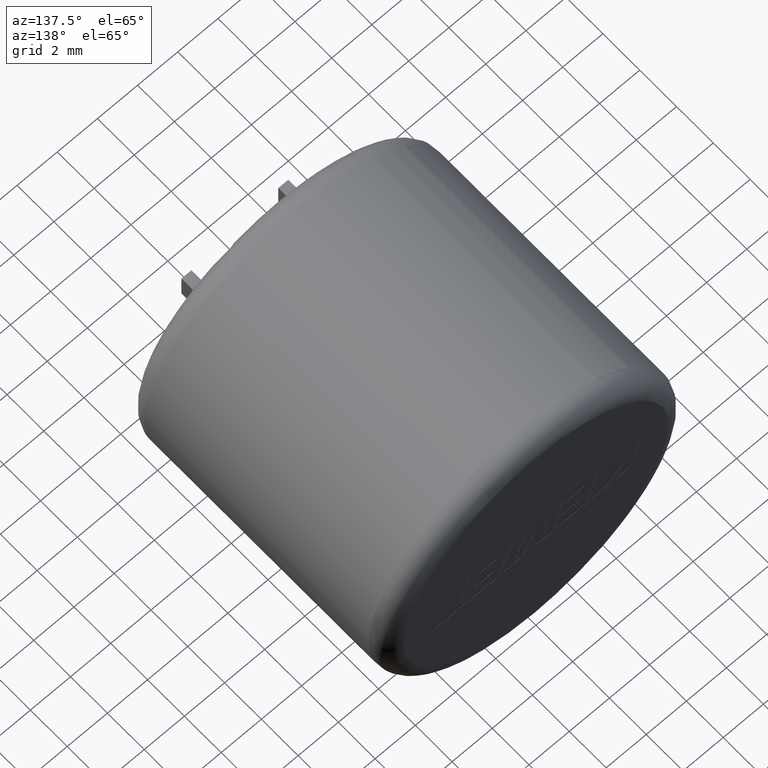
[diagram: clean part render]
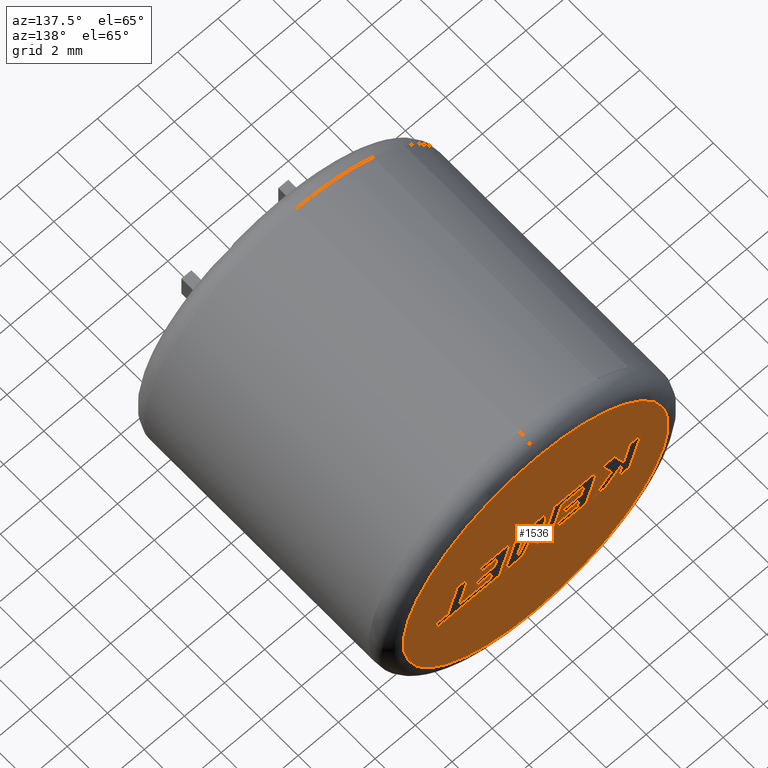
[diagram: same view with one face highlighted and labeled with its STEP entity id]
A machine part, auxiliary view. The second image highlights one B-rep face of the part: STEP entity #1536.
In plain terms, the highlighted planar face has unit normal (0, 1, 0).
Its self-contained STEP definition (entity closure, byte-faithful):
#1 = CARTESIAN_POINT ( 'NONE',  ( 8.631922963790118000E-016, 14.00000000000000000, -6.596999999999999500 ) ) ;
#2 = LINE ( 'NONE', #411, #166 ) ;
#19 = CARTESIAN_POINT ( 'NONE',  ( 0.0000000000000000000, 14.00000000000000000, 0.0000000000000000000 ) ) ;
#26 = VECTOR ( 'NONE', #730, 1000.000000000000000 ) ;
#32 = LINE ( 'NONE', #1205, #2128 ) ;
#38 = LINE ( 'NONE', #2052, #1680 ) ;
#42 = CARTESIAN_POINT ( 'NONE',  ( 1.227090569557494300, 14.00000000000000000, 1.053028994543904900 ) ) ;
#43 = ORIENTED_EDGE ( 'NONE', *, *, #2707, .F. ) ;
#46 = DIRECTION ( 'NONE',  ( -1.000000000000000000, 0.0000000000000000000, 0.0000000000000000000 ) ) ;
#48 = EDGE_CURVE ( 'NONE', #1584, #2739, #210, .T. ) ;
#51 = DIRECTION ( 'NONE',  ( 1.000000000000000000, 0.0000000000000000000, 0.0000000000000000000 ) ) ;
#58 = CARTESIAN_POINT ( 'NONE',  ( -2.044280021955986900, 14.00000000000000000, -0.5793581909814401500 ) ) ;
#59 = VERTEX_POINT ( 'NONE', #98 ) ;
#80 = EDGE_CURVE ( 'NONE', #1637, #434, #2399, .T. ) ;
#86 = DIRECTION ( 'NONE',  ( 0.2740217765954067200, 0.0000000000000000000, -0.9617234872620595800 ) ) ;
#96 = VECTOR ( 'NONE', #831, 1000.000000000000200 ) ;
#98 = CARTESIAN_POINT ( 'NONE',  ( -0.4995563842746180700, 14.00000000000000000, 1.053028994543905300 ) ) ;
#114 = EDGE_CURVE ( 'NONE', #2323, #699, #905, .T. ) ;
#117 = VECTOR ( 'NONE', #1869, 1000.000000000000100 ) ;
#134 = CARTESIAN_POINT ( 'NONE',  ( 0.6798407158200340300, 14.00000000000000000, -0.9631222229663527500 ) ) ;
#143 = PLANE ( 'NONE',  #1970 ) ;
#153 = LINE ( 'NONE', #1111, #2292 ) ;
#156 = DIRECTION ( 'NONE',  ( -1.000000000000000000, -0.0000000000000000000, -0.0000000000000000000 ) ) ;
#161 = LINE ( 'NONE', #1281, #1811 ) ;
#166 = VECTOR ( 'NONE', #1907, 1000.000000000000000 ) ;
#167 = CARTESIAN_POINT ( 'NONE',  ( 0.6798407158200339100, 14.00000000000000000, -0.9631222229663525300 ) ) ;
#180 = DIRECTION ( 'NONE',  ( 0.2745159998572669300, 0.0000000000000000000, -0.9615825319869143500 ) ) ;
#186 = DIRECTION ( 'NONE',  ( 0.2762033010288755300, 0.0000000000000000000, -0.9610992334305299400 ) ) ;
#190 = LINE ( 'NONE', #1619, #117 ) ;
#192 = EDGE_CURVE ( 'NONE', #307, #2170, #2, .T. ) ;
#200 = CARTESIAN_POINT ( 'NONE',  ( 4.931683720037595400, 14.00000000000000000, -0.5737970821254480000 ) ) ;
#207 = CARTESIAN_POINT ( 'NONE',  ( 0.0000000000000000000, 14.00000000000000000, 6.596999999999999500 ) ) ;
#210 = LINE ( 'NONE', #1159, #1971 ) ;
#212 = CARTESIAN_POINT ( 'NONE',  ( -2.506168825485704900, 14.00000000000000000, -0.9631222229663520800 ) ) ;
#213 = EDGE_CURVE ( 'NONE', #1815, #397, #904, .T. ) ;
#216 = CARTESIAN_POINT ( 'NONE',  ( -4.677904531710408900, 14.00000000000000000, 1.053028994543905300 ) ) ;
#222 = ORIENTED_EDGE ( 'NONE', *, *, #213, .F. ) ;
#231 = CARTESIAN_POINT ( 'NONE',  ( -4.097731242331414100, 14.00000000000000000, -0.9631222229663523000 ) ) ;
#247 = EDGE_CURVE ( 'NONE', #2655, #1239, #1350, .T. ) ;
#251 = VERTEX_POINT ( 'NONE', #1682 ) ;
#253 = CARTESIAN_POINT ( 'NONE',  ( -0.9143214339711456300, 14.00000000000000000, 1.053028994543905300 ) ) ;
#254 = VERTEX_POINT ( 'NONE', #1 ) ;
#256 = LINE ( 'NONE', #378, #897 ) ;
#257 = LINE ( 'NONE', #1333, #1344 ) ;
#269 = DIRECTION ( 'NONE',  ( 0.0000000000000000000, 0.0000000000000000000, 1.000000000000000000 ) ) ;
#275 = CARTESIAN_POINT ( 'NONE',  ( 0.0000000000000000000, 14.00000000000000000, 0.0000000000000000000 ) ) ;
#290 = LINE ( 'NONE', #1919, #520 ) ;
#298 = LINE ( 'NONE', #200, #2497 ) ;
#303 = ORIENTED_EDGE ( 'NONE', *, *, #2319, .F. ) ;
#307 = VERTEX_POINT ( 'NONE', #2202 ) ;
#311 = VERTEX_POINT ( 'NONE', #2414 ) ;
#322 = DIRECTION ( 'NONE',  ( 0.2763139702539117400, 0.0000000000000000000, -0.9610674221107072800 ) ) ;
#335 = ORIENTED_EDGE ( 'NONE', *, *, #2763, .F. ) ;
#361 = AXIS2_PLACEMENT_3D ( 'NONE', #275, #2413, #269 ) ;
#365 = VECTOR ( 'NONE', #823, 1000.000000000000100 ) ;
#370 = CARTESIAN_POINT ( 'NONE',  ( -1.125700924485933100, 14.00000000000000000, -0.5793581909814401500 ) ) ;
#374 = DIRECTION ( 'NONE',  ( 0.0000000000000000000, 1.000000000000000000, 0.0000000000000000000 ) ) ;
#378 = CARTESIAN_POINT ( 'NONE',  ( -3.765038890539953000, 14.00000000000000000, -0.04168639734653927600 ) ) ;
#380 = CARTESIAN_POINT ( 'NONE',  ( 3.912071732558238600, 14.00000000000000000, 1.053028994543904000 ) ) ;
#381 = DIRECTION ( 'NONE',  ( -0.2764273280489769100, 0.0000000000000000000, 0.9610348236706635100 ) ) ;
#383 = CARTESIAN_POINT ( 'NONE',  ( 0.0000000000000000000, 14.00000000000000000, 0.0000000000000000000 ) ) ;
#384 = ORIENTED_EDGE ( 'NONE', *, *, #1893, .F. ) ;
#393 = CARTESIAN_POINT ( 'NONE',  ( 1.807006385584198200, 14.00000000000000000, -0.9631222229663527500 ) ) ;
#394 = DIRECTION ( 'NONE',  ( -1.000000000000000000, 0.0000000000000000000, 5.050979426444720200E-016 ) ) ;
#397 = VERTEX_POINT ( 'NONE', #2472 ) ;
#399 = DIRECTION ( 'NONE',  ( 0.2759782365590740500, 0.0000000000000000000, -0.9611638845408954100 ) ) ;
#408 = EDGE_CURVE ( 'NONE', #540, #1110, #32, .T. ) ;
#409 = DIRECTION ( 'NONE',  ( 0.7145695586382339000, -0.0000000000000000000, -0.6995643972269883800 ) ) ;
#411 = CARTESIAN_POINT ( 'NONE',  ( -1.288044003593056700, 14.00000000000000000, -0.2043543833022431500 ) ) ;
#414 = CARTESIAN_POINT ( 'NONE',  ( 0.03793149982259607500, 14.00000000000000000, 1.053028994543905100 ) ) ;
#416 = CARTESIAN_POINT ( 'NONE',  ( -2.823838918333584600, 14.00000000000000000, -0.9631222229663523000 ) ) ;
#424 = ORIENTED_EDGE ( 'NONE', *, *, #2182, .F. ) ;
#425 = FACE_OUTER_BOUND ( 'NONE', #1480, .T. ) ;
#427 = DIRECTION ( 'NONE',  ( 0.2755265765475025100, -0.0000000000000000000, -0.9612934544747577800 ) ) ;
#431 = CARTESIAN_POINT ( 'NONE',  ( -1.125700924485933100, 14.00000000000000000, -0.5793581909814401500 ) ) ;
#434 = VERTEX_POINT ( 'NONE', #978 ) ;
#450 = CARTESIAN_POINT ( 'NONE',  ( 0.03793149982259607500, 14.00000000000000000, 1.053028994543905100 ) ) ;
#453 = DIRECTION ( 'NONE',  ( 0.0000000000000000000, -0.0000000000000000000, 1.000000000000000000 ) ) ;
#459 = CARTESIAN_POINT ( 'NONE',  ( -1.016703871901081000, 14.00000000000000000, -0.9631222229663523000 ) ) ;
#462 = VECTOR ( 'NONE', #427, 1000.000000000000100 ) ;
#480 = ORIENTED_EDGE ( 'NONE', *, *, #979, .F. ) ;
#482 = CARTESIAN_POINT ( 'NONE',  ( -3.487335487235283500, 14.00000000000000000, -0.9631222229663523000 ) ) ;
#489 = LINE ( 'NONE', #1771, #860 ) ;
#501 = CARTESIAN_POINT ( 'NONE',  ( -1.273190244891335900, 14.00000000000000000, 1.053028994543905300 ) ) ;
#508 = EDGE_CURVE ( 'NONE', #1011, #2706, #2634, .T. ) ;
#517 = FACE_BOUND ( 'NONE', #692, .T. ) ;
#519 = LINE ( 'NONE', #1791, #2722 ) ;
#520 = VECTOR ( 'NONE', #2561, 1000.000000000000100 ) ;
#522 = ORIENTED_EDGE ( 'NONE', *, *, #508, .F. ) ;
#525 = ORIENTED_EDGE ( 'NONE', *, *, #919, .F. ) ;
#540 = VERTEX_POINT ( 'NONE', #2537 ) ;
#564 = LINE ( 'NONE', #414, #1236 ) ;
#570 = DIRECTION ( 'NONE',  ( -0.2765379750249959400, 0.0000000000000000000, 0.9610029908221278100 ) ) ;
#581 = DIRECTION ( 'NONE',  ( -0.4443210308329209000, 0.0000000000000000000, 0.8958676361826954900 ) ) ;
#585 = EDGE_CURVE ( 'NONE', #1046, #2391, #564, .T. ) ;
#586 = CARTESIAN_POINT ( 'NONE',  ( 4.379680122707077800, 14.00000000000000000, -0.5738409048472185000 ) ) ;
#603 = VERTEX_POINT ( 'NONE', #207 ) ;
#606 = EDGE_CURVE ( 'NONE', #1177, #946, #2766, .T. ) ;
#618 = DIRECTION ( 'NONE',  ( -0.7059037656364859400, -0.0000000000000000000, 0.7083077534943613700 ) ) ;
#621 = CARTESIAN_POINT ( 'NONE',  ( -3.086335984546776600, 14.00000000000000000, 1.053028994543905700 ) ) ;
#624 = ORIENTED_EDGE ( 'NONE', *, *, #1138, .F. ) ;
#628 = LINE ( 'NONE', #2761, #2721 ) ;
#634 = ORIENTED_EDGE ( 'NONE', *, *, #2470, .F. ) ;
#635 = ORIENTED_EDGE ( 'NONE', *, *, #2509, .F. ) ;
#637 = CARTESIAN_POINT ( 'NONE',  ( -3.765038890539953000, 14.00000000000000000, -0.04168639734653927600 ) ) ;
#673 = VERTEX_POINT ( 'NONE', #1806 ) ;
#684 = DIRECTION ( 'NONE',  ( 1.000000000000000000, 0.0000000000000000000, -4.232393926185561900E-016 ) ) ;
#692 = EDGE_LOOP ( 'NONE', ( #2243, #424, #1092, #2590, #2230, #1949, #2376, #1606, #1629, #2622, #1854, #480, #2071, #2477, #1363, #866, #2646, #384, #1449, #1251, #808, #2232, #1447 ) ) ;
#696 = LINE ( 'NONE', #2270, #1677 ) ;
#699 = VERTEX_POINT ( 'NONE', #2656 ) ;
#704 = DIRECTION ( 'NONE',  ( 1.000000000000000000, 0.0000000000000000000, -3.775570415932256000E-016 ) ) ;
#715 = VECTOR ( 'NONE', #1762, 1000.000000000000000 ) ;
#719 = VECTOR ( 'NONE', #46, 1000.000000000000000 ) ;
#730 = DIRECTION ( 'NONE',  ( 1.000000000000000000, 0.0000000000000000000, 0.0000000000000000000 ) ) ;
#744 = CARTESIAN_POINT ( 'NONE',  ( 0.9844525863630282400, 14.00000000000000000, 1.053028994543904600 ) ) ;
#757 = LINE ( 'NONE', #2074, #2629 ) ;
#761 = DIRECTION ( 'NONE',  ( 1.000000000000000000, -0.0000000000000000000, 1.096870650732911000E-013 ) ) ;
#780 = DIRECTION ( 'NONE',  ( 0.2746918797667231600, 0.0000000000000000000, -0.9615323037684299100 ) ) ;
#786 = VECTOR ( 'NONE', #1182, 1000.000000000000000 ) ;
#798 = ORIENTED_EDGE ( 'NONE', *, *, #2150, .F. ) ;
#800 = EDGE_CURVE ( 'NONE', #2660, #1930, #38, .T. ) ;
#801 = LINE ( 'NONE', #1694, #1873 ) ;
#808 = ORIENTED_EDGE ( 'NONE', *, *, #1335, .F. ) ;
#823 = DIRECTION ( 'NONE',  ( -0.05596501978067570900, 0.0000000000000000000, 0.9984327301130249100 ) ) ;
#830 = LINE ( 'NONE', #2082, #1604 ) ;
#831 = DIRECTION ( 'NONE',  ( -0.2763173343569915700, 0.0000000000000000000, 0.9610664548998921800 ) ) ;
#856 = LINE ( 'NONE', #2436, #786 ) ;
#859 = LINE ( 'NONE', #2401, #2662 ) ;
#860 = VECTOR ( 'NONE', #684, 1000.000000000000000 ) ;
#866 = ORIENTED_EDGE ( 'NONE', *, *, #1993, .F. ) ;
#867 = CARTESIAN_POINT ( 'NONE',  ( -4.671798733445354100, 14.00000000000000000, -0.9631222229663523000 ) ) ;
#872 = VECTOR ( 'NONE', #381, 1000.000000000000000 ) ;
#889 = EDGE_CURVE ( 'NONE', #1704, #1218, #830, .T. ) ;
#897 = VECTOR ( 'NONE', #1734, 1000.000000000000100 ) ;
#904 = LINE ( 'NONE', #1054, #96 ) ;
#905 = LINE ( 'NONE', #1247, #2001 ) ;
#907 = CARTESIAN_POINT ( 'NONE',  ( 3.805490025235814100, 14.00000000000000000, -0.5738409048522489200 ) ) ;
#908 = EDGE_CURVE ( 'NONE', #1731, #673, #2389, .T. ) ;
#918 = VECTOR ( 'NONE', #322, 1000.000000000000000 ) ;
#919 = EDGE_CURVE ( 'NONE', #1299, #2045, #1772, .T. ) ;
#920 = DIRECTION ( 'NONE',  ( -0.2762033010252001900, -0.0000000000000000000, 0.9610992334315862100 ) ) ;
#927 = CARTESIAN_POINT ( 'NONE',  ( 3.912071732558238600, 14.00000000000000000, 1.053028994543904000 ) ) ;
#946 = VERTEX_POINT ( 'NONE', #1678 ) ;
#954 = CIRCLE ( 'NONE', #1751, 6.596999999999999500 ) ;
#955 = EDGE_CURVE ( 'NONE', #1278, #1637, #757, .T. ) ;
#963 = ORIENTED_EDGE ( 'NONE', *, *, #1388, .T. ) ;
#976 = ORIENTED_EDGE ( 'NONE', *, *, #1422, .F. ) ;
#978 = CARTESIAN_POINT ( 'NONE',  ( -0.03453285888950724500, 14.00000000000000000, 0.4772421111879622800 ) ) ;
#979 = EDGE_CURVE ( 'NONE', #2631, #2565, #1163, .T. ) ;
#989 = ORIENTED_EDGE ( 'NONE', *, *, #1036, .F. ) ;
#990 = FACE_BOUND ( 'NONE', #2058, .T. ) ;
#992 = VECTOR ( 'NONE', #399, 1000.000000000000200 ) ;
#1003 = LINE ( 'NONE', #1265, #365 ) ;
#1011 = VERTEX_POINT ( 'NONE', #1667 ) ;
#1031 = EDGE_CURVE ( 'NONE', #1110, #1986, #2488, .T. ) ;
#1035 = VERTEX_POINT ( 'NONE', #231 ) ;
#1036 = EDGE_CURVE ( 'NONE', #2045, #2554, #256, .T. ) ;
#1045 = DIRECTION ( 'NONE',  ( 1.000000000000000000, -0.0000000000000000000, -0.0000000000000000000 ) ) ;
#1046 = VERTEX_POINT ( 'NONE', #450 ) ;
#1050 = VERTEX_POINT ( 'NONE', #867 ) ;
#1054 = CARTESIAN_POINT ( 'NONE',  ( 3.805490025235814100, 14.00000000000000000, -0.5738409048522489200 ) ) ;
#1055 = DIRECTION ( 'NONE',  ( 0.9999960426590096500, 0.0000000000000000000, 0.002813301676022722900 ) ) ;
#1057 = VERTEX_POINT ( 'NONE', #2112 ) ;
#1062 = VECTOR ( 'NONE', #780, 1000.000000000000000 ) ;
#1067 = CARTESIAN_POINT ( 'NONE',  ( 0.9900434363040663300, 14.00000000000000000, -0.7505411885221796600 ) ) ;
#1068 = CIRCLE ( 'NONE', #361, 6.596999999999999500 ) ;
#1069 = VECTOR ( 'NONE', #2104, 1000.000000000000100 ) ;
#1073 = CARTESIAN_POINT ( 'NONE',  ( 0.9844525863630282400, 14.00000000000000000, 1.053028994543904600 ) ) ;
#1083 = ORIENTED_EDGE ( 'NONE', *, *, #2690, .T. ) ;
#1084 = DIRECTION ( 'NONE',  ( 0.05375259206908298400, 0.0000000000000000000, -0.9985542843760947300 ) ) ;
#1092 = ORIENTED_EDGE ( 'NONE', *, *, #1726, .F. ) ;
#1110 = VERTEX_POINT ( 'NONE', #216 ) ;
#1111 = CARTESIAN_POINT ( 'NONE',  ( -1.016703871901081000, 14.00000000000000000, -0.9631222229663523000 ) ) ;
#1115 = CARTESIAN_POINT ( 'NONE',  ( 1.564110927417840000, 14.00000000000000000, -0.9631222229663527500 ) ) ;
#1123 = LINE ( 'NONE', #1196, #1062 ) ;
#1138 = EDGE_CURVE ( 'NONE', #1218, #1035, #290, .T. ) ;
#1141 = VERTEX_POINT ( 'NONE', #2127 ) ;
#1155 = DIRECTION ( 'NONE',  ( 0.2793947940814914300, 0.0000000000000000000, -0.9601763114346035800 ) ) ;
#1158 = ORIENTED_EDGE ( 'NONE', *, *, #2455, .F. ) ;
#1159 = CARTESIAN_POINT ( 'NONE',  ( -0.8156049229187412000, 14.00000000000000000, -0.9631222229663523000 ) ) ;
#1160 = DIRECTION ( 'NONE',  ( -1.000000000000000000, -0.0000000000000000000, -0.0000000000000000000 ) ) ;
#1162 = VECTOR ( 'NONE', #51, 1000.000000000000000 ) ;
#1163 = LINE ( 'NONE', #370, #2155 ) ;
#1176 = ORIENTED_EDGE ( 'NONE', *, *, #606, .F. ) ;
#1177 = VERTEX_POINT ( 'NONE', #1727 ) ;
#1178 = CARTESIAN_POINT ( 'NONE',  ( -2.153399680898977000, 14.00000000000000000, -0.2043543833022431500 ) ) ;
#1182 = DIRECTION ( 'NONE',  ( 0.2729786930695173900, 0.0000000000000000000, -0.9620200793798735500 ) ) ;
#1196 = CARTESIAN_POINT ( 'NONE',  ( 2.918285894870225900, 14.00000000000000000, 0.1683628157980139000 ) ) ;
#1205 = CARTESIAN_POINT ( 'NONE',  ( -4.677904531710408900, 14.00000000000000000, 1.053028994543905300 ) ) ;
#1210 = ORIENTED_EDGE ( 'NONE', *, *, #889, .F. ) ;
#1218 = VERTEX_POINT ( 'NONE', #2395 ) ;
#1227 = VECTOR ( 'NONE', #409, 1000.000000000000000 ) ;
#1229 = VECTOR ( 'NONE', #2738, 1000.000000000000000 ) ;
#1236 = VECTOR ( 'NONE', #2762, 1000.000000000000200 ) ;
#1239 = VERTEX_POINT ( 'NONE', #1358 ) ;
#1241 = LINE ( 'NONE', #393, #872 ) ;
#1247 = CARTESIAN_POINT ( 'NONE',  ( 2.859214151411832100, 14.00000000000000000, 0.6693814386009964100 ) ) ;
#1251 = ORIENTED_EDGE ( 'NONE', *, *, #48, .F. ) ;
#1265 = CARTESIAN_POINT ( 'NONE',  ( -0.3989456066037058200, 14.00000000000000000, -0.7418974402618798700 ) ) ;
#1275 = VECTOR ( 'NONE', #920, 1000.000000000000100 ) ;
#1278 = VERTEX_POINT ( 'NONE', #1115 ) ;
#1281 = CARTESIAN_POINT ( 'NONE',  ( 3.303711244630005400, 14.00000000000000000, -0.9631222229663528600 ) ) ;
#1284 = DIRECTION ( 'NONE',  ( 0.0000000000000000000, 0.0000000000000000000, 1.000000000000000000 ) ) ;
#1291 = EDGE_CURVE ( 'NONE', #1141, #2631, #1672, .T. ) ;
#1293 = CARTESIAN_POINT ( 'NONE',  ( 2.053187690916773900, 14.00000000000000000, 0.1683628157980141300 ) ) ;
#1294 = EDGE_CURVE ( 'NONE', #2739, #1612, #2295, .T. ) ;
#1299 = VERTEX_POINT ( 'NONE', #1760 ) ;
#1313 = EDGE_CURVE ( 'NONE', #699, #1177, #628, .T. ) ;
#1333 = CARTESIAN_POINT ( 'NONE',  ( 3.337746768091752500, 14.00000000000000000, 1.053028994543904200 ) ) ;
#1335 = EDGE_CURVE ( 'NONE', #311, #1584, #2183, .T. ) ;
#1344 = VECTOR ( 'NONE', #704, 1000.000000000000000 ) ;
#1349 = EDGE_CURVE ( 'NONE', #2170, #1141, #1368, .T. ) ;
#1350 = LINE ( 'NONE', #2130, #2163 ) ;
#1358 = CARTESIAN_POINT ( 'NONE',  ( -1.394503104559656100, 14.00000000000000000, 0.1683628157939400200 ) ) ;
#1363 = ORIENTED_EDGE ( 'NONE', *, *, #192, .F. ) ;
#1368 = LINE ( 'NONE', #1910, #1542 ) ;
#1374 = CARTESIAN_POINT ( 'NONE',  ( 5.043569033575890300, 14.00000000000000000, -0.9631222229663530800 ) ) ;
#1378 = LINE ( 'NONE', #1067, #2492 ) ;
#1388 = EDGE_CURVE ( 'NONE', #603, #254, #954, .T. ) ;
#1389 = DIRECTION ( 'NONE',  ( -0.2762517575166151300, 0.0000000000000000000, 0.9610853065513910200 ) ) ;
#1390 = VERTEX_POINT ( 'NONE', #621 ) ;
#1394 = CARTESIAN_POINT ( 'NONE',  ( -1.284868498917413500, 14.00000000000000000, 0.6694550024109757700 ) ) ;
#1422 = EDGE_CURVE ( 'NONE', #1986, #1299, #1801, .T. ) ;
#1425 = CARTESIAN_POINT ( 'NONE',  ( -3.311272758248907000, 14.00000000000000000, 1.053028994543904900 ) ) ;
#1427 = EDGE_CURVE ( 'NONE', #434, #311, #859, .T. ) ;
#1432 = CARTESIAN_POINT ( 'NONE',  ( -4.364136469712908800, 14.00000000000000000, -0.04168639734652045800 ) ) ;
#1447 = ORIENTED_EDGE ( 'NONE', *, *, #80, .F. ) ;
#1449 = ORIENTED_EDGE ( 'NONE', *, *, #1294, .F. ) ;
#1457 = CARTESIAN_POINT ( 'NONE',  ( 2.859214151411832100, 14.00000000000000000, 0.6693814386009964100 ) ) ;
#1466 = VERTEX_POINT ( 'NONE', #1073 ) ;
#1472 = ORIENTED_EDGE ( 'NONE', *, *, #2349, .F. ) ;
#1480 = EDGE_LOOP ( 'NONE', ( #963, #1083 ) ) ;
#1483 = ORIENTED_EDGE ( 'NONE', *, *, #2215, .F. ) ;
#1502 = ORIENTED_EDGE ( 'NONE', *, *, #800, .F. ) ;
#1504 = LINE ( 'NONE', #927, #2089 ) ;
#1510 = VERTEX_POINT ( 'NONE', #2456 ) ;
#1515 = EDGE_CURVE ( 'NONE', #946, #251, #1123, .T. ) ;
#1524 = CARTESIAN_POINT ( 'NONE',  ( -2.259736175507299100, 14.00000000000000000, 0.1683628157939400200 ) ) ;
#1525 = VECTOR ( 'NONE', #581, 1000.000000000000100 ) ;
#1536 = ADVANCED_FACE ( 'NONE', ( #990, #517, #2559, #425 ), #143, .T. ) ;
#1539 = VECTOR ( 'NONE', #1160, 1000.000000000000000 ) ;
#1542 = VECTOR ( 'NONE', #2310, 999.9999999999998900 ) ;
#1564 = CARTESIAN_POINT ( 'NONE',  ( -1.284868498917413500, 14.00000000000000000, 0.6694550024109757700 ) ) ;
#1573 = VERTEX_POINT ( 'NONE', #380 ) ;
#1576 = CARTESIAN_POINT ( 'NONE',  ( 4.931683720037595400, 14.00000000000000000, -0.5737970821254480000 ) ) ;
#1584 = VERTEX_POINT ( 'NONE', #2367 ) ;
#1595 = DIRECTION ( 'NONE',  ( 0.2762437428917315400, 0.0000000000000000000, -0.9610876102172824000 ) ) ;
#1604 = VECTOR ( 'NONE', #618, 1000.000000000000100 ) ;
#1606 = ORIENTED_EDGE ( 'NONE', *, *, #908, .F. ) ;
#1612 = VERTEX_POINT ( 'NONE', #1881 ) ;
#1619 = CARTESIAN_POINT ( 'NONE',  ( -1.394503104559656100, 14.00000000000000000, 0.1683628157939400200 ) ) ;
#1629 = ORIENTED_EDGE ( 'NONE', *, *, #1843, .F. ) ;
#1637 = VERTEX_POINT ( 'NONE', #167 ) ;
#1664 = LINE ( 'NONE', #744, #918 ) ;
#1667 = CARTESIAN_POINT ( 'NONE',  ( 4.379680122707077800, 14.00000000000000000, -0.5738409048472185000 ) ) ;
#1672 = LINE ( 'NONE', #58, #1162 ) ;
#1673 = CARTESIAN_POINT ( 'NONE',  ( 0.04300255174971300700, 14.00000000000000000, -0.9631222229663527500 ) ) ;
#1677 = VECTOR ( 'NONE', #2712, 1000.000000000000000 ) ;
#1678 = CARTESIAN_POINT ( 'NONE',  ( 2.918285894870225900, 14.00000000000000000, 0.1683628157980139000 ) ) ;
#1680 = VECTOR ( 'NONE', #2480, 1000.000000000000000 ) ;
#1682 = CARTESIAN_POINT ( 'NONE',  ( 3.024744995834479400, 14.00000000000000000, -0.2042869498019201400 ) ) ;
#1685 = EDGE_LOOP ( 'NONE', ( #43, #798, #624, #1210, #1472, #1774, #989, #525, #976, #1745, #2036 ) ) ;
#1694 = CARTESIAN_POINT ( 'NONE',  ( 2.268643844463263300, 14.00000000000000000, -0.5792907574821812800 ) ) ;
#1701 = EDGE_CURVE ( 'NONE', #397, #1573, #257, .T. ) ;
#1704 = VERTEX_POINT ( 'NONE', #482 ) ;
#1707 = LINE ( 'NONE', #501, #26 ) ;
#1708 = CARTESIAN_POINT ( 'NONE',  ( -4.364136469712908800, 14.00000000000000000, -0.04168639734652045800 ) ) ;
#1722 = DIRECTION ( 'NONE',  ( -0.2760118818968560500, 0.0000000000000000000, 0.9611542233438689100 ) ) ;
#1726 = EDGE_CURVE ( 'NONE', #1057, #1466, #489, .T. ) ;
#1727 = CARTESIAN_POINT ( 'NONE',  ( 2.053187690916773900, 14.00000000000000000, 0.1683628157980141300 ) ) ;
#1731 = VERTEX_POINT ( 'NONE', #253 ) ;
#1734 = DIRECTION ( 'NONE',  ( -0.3829140317376766900, -0.0000000000000000000, -0.9237839814038764100 ) ) ;
#1745 = ORIENTED_EDGE ( 'NONE', *, *, #1031, .F. ) ;
#1751 = AXIS2_PLACEMENT_3D ( 'NONE', #383, #1902, #1284 ) ;
#1760 = CARTESIAN_POINT ( 'NONE',  ( -3.924721411668132800, 14.00000000000000000, 1.053028994543904900 ) ) ;
#1762 = DIRECTION ( 'NONE',  ( 1.000000000000000000, 0.0000000000000000000, -4.034331580539989700E-016 ) ) ;
#1771 = CARTESIAN_POINT ( 'NONE',  ( 0.4721173966834419400, 14.00000000000000000, 1.053028994543904900 ) ) ;
#1772 = LINE ( 'NONE', #2290, #2024 ) ;
#1773 = EDGE_CURVE ( 'NONE', #2565, #2380, #153, .T. ) ;
#1774 = ORIENTED_EDGE ( 'NONE', *, *, #2079, .F. ) ;
#1788 = EDGE_CURVE ( 'NONE', #59, #1046, #2255, .T. ) ;
#1791 = CARTESIAN_POINT ( 'NONE',  ( -2.402511279821104600, 14.00000000000000000, 0.6694550024109757700 ) ) ;
#1797 = CARTESIAN_POINT ( 'NONE',  ( -5.251205731465742800, 14.00000000000000000, 1.053028994543842500 ) ) ;
#1801 = LINE ( 'NONE', #2534, #1229 ) ;
#1805 = ORIENTED_EDGE ( 'NONE', *, *, #1313, .F. ) ;
#1806 = CARTESIAN_POINT ( 'NONE',  ( -0.3989456066037058200, 14.00000000000000000, -0.7418974402618798700 ) ) ;
#1811 = VECTOR ( 'NONE', #2758, 1000.000000000000000 ) ;
#1815 = VERTEX_POINT ( 'NONE', #907 ) ;
#1822 = ORIENTED_EDGE ( 'NONE', *, *, #1989, .F. ) ;
#1823 = CARTESIAN_POINT ( 'NONE',  ( 1.807006385584198200, 14.00000000000000000, -0.9631222229663527500 ) ) ;
#1836 = CARTESIAN_POINT ( 'NONE',  ( 3.192556318522602200, 14.00000000000000000, -0.5766915026842742700 ) ) ;
#1838 = LINE ( 'NONE', #1797, #1275 ) ;
#1840 = VERTEX_POINT ( 'NONE', #1374 ) ;
#1843 = EDGE_CURVE ( 'NONE', #1390, #1731, #1707, .T. ) ;
#1851 = DIRECTION ( 'NONE',  ( -1.000000000000000000, 0.0000000000000000000, 2.284793946200968400E-016 ) ) ;
#1852 = DIRECTION ( 'NONE',  ( 0.9999891854650020400, 0.0000000000000000000, 0.004650693823678137000 ) ) ;
#1854 = ORIENTED_EDGE ( 'NONE', *, *, #1773, .F. ) ;
#1858 = VECTOR ( 'NONE', #1852, 1000.000000000000200 ) ;
#1864 = LINE ( 'NONE', #2053, #2597 ) ;
#1869 = DIRECTION ( 'NONE',  ( 0.2746459304916897800, 0.0000000000000000000, -0.9615454294334480100 ) ) ;
#1872 = VERTEX_POINT ( 'NONE', #2628 ) ;
#1873 = VECTOR ( 'NONE', #1055, 999.9999999999998900 ) ;
#1881 = CARTESIAN_POINT ( 'NONE',  ( -2.402511279821104600, 14.00000000000000000, 0.6694550024109757700 ) ) ;
#1893 = EDGE_CURVE ( 'NONE', #1612, #2655, #519, .T. ) ;
#1902 = DIRECTION ( 'NONE',  ( 0.0000000000000000000, 1.000000000000000000, 0.0000000000000000000 ) ) ;
#1906 = DIRECTION ( 'NONE',  ( 0.2732148821745903900, 0.0000000000000000000, -0.9619530280415592400 ) ) ;
#1907 = DIRECTION ( 'NONE',  ( -1.000000000000000000, 0.0000000000000000000, 0.0000000000000000000 ) ) ;
#1910 = CARTESIAN_POINT ( 'NONE',  ( -2.153399680898977000, 14.00000000000000000, -0.2043543833022431500 ) ) ;
#1919 = CARTESIAN_POINT ( 'NONE',  ( -4.097731242331414100, 14.00000000000000000, -0.9631222229663523000 ) ) ;
#1930 = VERTEX_POINT ( 'NONE', #2228 ) ;
#1949 = ORIENTED_EDGE ( 'NONE', *, *, #1788, .F. ) ;
#1961 = EDGE_CURVE ( 'NONE', #2380, #1390, #1864, .T. ) ;
#1967 = VECTOR ( 'NONE', #2143, 1000.000000000000000 ) ;
#1970 = AXIS2_PLACEMENT_3D ( 'NONE', #19, #374, #453 ) ;
#1971 = VECTOR ( 'NONE', #1389, 1000.000000000000100 ) ;
#1986 = VERTEX_POINT ( 'NONE', #1432 ) ;
#1989 = EDGE_CURVE ( 'NONE', #1930, #2323, #856, .T. ) ;
#1993 = EDGE_CURVE ( 'NONE', #1239, #307, #190, .T. ) ;
#2001 = VECTOR ( 'NONE', #1851, 1000.000000000000000 ) ;
#2005 = ORIENTED_EDGE ( 'NONE', *, *, #1701, .F. ) ;
#2008 = VERTEX_POINT ( 'NONE', #2481 ) ;
#2024 = VECTOR ( 'NONE', #1045, 1000.000000000000000 ) ;
#2036 = ORIENTED_EDGE ( 'NONE', *, *, #408, .F. ) ;
#2045 = VERTEX_POINT ( 'NONE', #1425 ) ;
#2052 = CARTESIAN_POINT ( 'NONE',  ( 1.227090569557494300, 14.00000000000000000, 1.053028994543904900 ) ) ;
#2053 = CARTESIAN_POINT ( 'NONE',  ( -2.506168825485704900, 14.00000000000000000, -0.9631222229663520800 ) ) ;
#2058 = EDGE_LOOP ( 'NONE', ( #2424, #335, #2591, #2689, #1176, #1805, #2668, #1822, #1502, #1158, #635, #634, #522, #1483, #2005, #222, #303 ) ) ;
#2065 = LINE ( 'NONE', #2467, #2732 ) ;
#2071 = ORIENTED_EDGE ( 'NONE', *, *, #1291, .F. ) ;
#2074 = CARTESIAN_POINT ( 'NONE',  ( 1.564110927417840000, 14.00000000000000000, -0.9631222229663527500 ) ) ;
#2079 = EDGE_CURVE ( 'NONE', #2554, #1872, #2325, .T. ) ;
#2082 = CARTESIAN_POINT ( 'NONE',  ( -4.344182283275985800, 14.00000000000000000, -0.1033573956103139300 ) ) ;
#2089 = VECTOR ( 'NONE', #1595, 1000.000000000000000 ) ;
#2104 = DIRECTION ( 'NONE',  ( 0.9999999968487352000, 0.0000000000000000000, 7.938847109754407800E-005 ) ) ;
#2112 = CARTESIAN_POINT ( 'NONE',  ( 0.4721173966834419400, 14.00000000000000000, 1.053028994543904900 ) ) ;
#2127 = CARTESIAN_POINT ( 'NONE',  ( -2.044280021955986900, 14.00000000000000000, -0.5793581909814401500 ) ) ;
#2128 = VECTOR ( 'NONE', #761, 1000.000000000000000 ) ;
#2130 = CARTESIAN_POINT ( 'NONE',  ( -2.259736175507299100, 14.00000000000000000, 0.1683628157939400200 ) ) ;
#2143 = DIRECTION ( 'NONE',  ( 1.000000000000000000, 0.0000000000000000000, -2.506541263247940100E-016 ) ) ;
#2150 = EDGE_CURVE ( 'NONE', #1035, #1050, #2482, .T. ) ;
#2155 = VECTOR ( 'NONE', #1906, 999.9999999999998900 ) ;
#2163 = VECTOR ( 'NONE', #2522, 1000.000000000000000 ) ;
#2170 = VERTEX_POINT ( 'NONE', #1178 ) ;
#2175 = VERTEX_POINT ( 'NONE', #1823 ) ;
#2182 = EDGE_CURVE ( 'NONE', #1466, #1278, #1664, .T. ) ;
#2183 = LINE ( 'NONE', #1673, #2355 ) ;
#2192 = VERTEX_POINT ( 'NONE', #2430 ) ;
#2202 = CARTESIAN_POINT ( 'NONE',  ( -1.288044003593056700, 14.00000000000000000, -0.2043543833022431500 ) ) ;
#2215 = EDGE_CURVE ( 'NONE', #1573, #1011, #1504, .T. ) ;
#2228 = CARTESIAN_POINT ( 'NONE',  ( 2.750351965824065400, 14.00000000000000000, 1.053028994543904400 ) ) ;
#2230 = ORIENTED_EDGE ( 'NONE', *, *, #585, .F. ) ;
#2232 = ORIENTED_EDGE ( 'NONE', *, *, #1427, .F. ) ;
#2237 = CARTESIAN_POINT ( 'NONE',  ( 2.159524185522648100, 14.00000000000000000, -0.2042869498019199100 ) ) ;
#2242 = LINE ( 'NONE', #2237, #2583 ) ;
#2243 = ORIENTED_EDGE ( 'NONE', *, *, #955, .F. ) ;
#2255 = LINE ( 'NONE', #2400, #715 ) ;
#2270 = CARTESIAN_POINT ( 'NONE',  ( 3.024744995834479400, 14.00000000000000000, -0.2042869498019201400 ) ) ;
#2290 = CARTESIAN_POINT ( 'NONE',  ( -3.311272758248907000, 14.00000000000000000, 1.053028994543904900 ) ) ;
#2292 = VECTOR ( 'NONE', #2596, 1000.000000000000000 ) ;
#2295 = LINE ( 'NONE', #1564, #719 ) ;
#2310 = DIRECTION ( 'NONE',  ( 0.2793947940878295200, 0.0000000000000000000, -0.9601763114327595000 ) ) ;
#2319 = EDGE_CURVE ( 'NONE', #1510, #1815, #2411, .T. ) ;
#2321 = EDGE_CURVE ( 'NONE', #251, #2008, #696, .T. ) ;
#2323 = VERTEX_POINT ( 'NONE', #1457 ) ;
#2325 = LINE ( 'NONE', #416, #1227 ) ;
#2349 = EDGE_CURVE ( 'NONE', #1872, #1704, #2065, .T. ) ;
#2355 = VECTOR ( 'NONE', #394, 1000.000000000000000 ) ;
#2367 = CARTESIAN_POINT ( 'NONE',  ( -0.8156049229187412000, 14.00000000000000000, -0.9631222229663523000 ) ) ;
#2376 = ORIENTED_EDGE ( 'NONE', *, *, #2433, .F. ) ;
#2380 = VERTEX_POINT ( 'NONE', #212 ) ;
#2389 = LINE ( 'NONE', #2708, #992 ) ;
#2391 = VERTEX_POINT ( 'NONE', #2719 ) ;
#2395 = CARTESIAN_POINT ( 'NONE',  ( -4.344182283275985800, 14.00000000000000000, -0.1033573956103139300 ) ) ;
#2399 = LINE ( 'NONE', #134, #1525 ) ;
#2400 = CARTESIAN_POINT ( 'NONE',  ( -0.4995563842746180700, 14.00000000000000000, 1.053028994543905300 ) ) ;
#2401 = CARTESIAN_POINT ( 'NONE',  ( -0.03453285888950724500, 14.00000000000000000, 0.4772421111879622800 ) ) ;
#2411 = LINE ( 'NONE', #1836, #1858 ) ;
#2413 = DIRECTION ( 'NONE',  ( 0.0000000000000000000, 1.000000000000000000, 0.0000000000000000000 ) ) ;
#2414 = CARTESIAN_POINT ( 'NONE',  ( 0.04300255174971300700, 14.00000000000000000, -0.9631222229663527500 ) ) ;
#2424 = ORIENTED_EDGE ( 'NONE', *, *, #2506, .F. ) ;
#2430 = CARTESIAN_POINT ( 'NONE',  ( 2.268643844463263300, 14.00000000000000000, -0.5792907574821812800 ) ) ;
#2433 = EDGE_CURVE ( 'NONE', #673, #59, #1003, .T. ) ;
#2436 = CARTESIAN_POINT ( 'NONE',  ( 2.750351965824065400, 14.00000000000000000, 1.053028994543904400 ) ) ;
#2455 = EDGE_CURVE ( 'NONE', #2175, #2660, #1241, .T. ) ;
#2456 = CARTESIAN_POINT ( 'NONE',  ( 3.192556318522601800, 14.00000000000000000, -0.5766915026842742700 ) ) ;
#2467 = CARTESIAN_POINT ( 'NONE',  ( -3.487335487235283500, 14.00000000000000000, -0.9631222229663523000 ) ) ;
#2470 = EDGE_CURVE ( 'NONE', #2706, #1840, #298, .T. ) ;
#2472 = CARTESIAN_POINT ( 'NONE',  ( 3.337746768091752500, 14.00000000000000000, 1.053028994543904200 ) ) ;
#2477 = ORIENTED_EDGE ( 'NONE', *, *, #1349, .F. ) ;
#2480 = DIRECTION ( 'NONE',  ( 1.000000000000000000, 0.0000000000000000000, -2.847054813160298500E-016 ) ) ;
#2481 = CARTESIAN_POINT ( 'NONE',  ( 2.159524185522648100, 14.00000000000000000, -0.2042869498019199100 ) ) ;
#2482 = LINE ( 'NONE', #2645, #1539 ) ;
#2488 = LINE ( 'NONE', #1708, #462 ) ;
#2492 = VECTOR ( 'NONE', #1722, 1000.000000000000200 ) ;
#2497 = VECTOR ( 'NONE', #186, 1000.000000000000100 ) ;
#2506 = EDGE_CURVE ( 'NONE', #2192, #1510, #801, .T. ) ;
#2509 = EDGE_CURVE ( 'NONE', #1840, #2175, #161, .T. ) ;
#2510 = DIRECTION ( 'NONE',  ( -1.000000000000000000, 0.0000000000000000000, 0.0000000000000000000 ) ) ;
#2522 = DIRECTION ( 'NONE',  ( 1.000000000000000000, 0.0000000000000000000, 0.0000000000000000000 ) ) ;
#2534 = CARTESIAN_POINT ( 'NONE',  ( -3.924721411668132800, 14.00000000000000000, 1.053028994543904900 ) ) ;
#2537 = CARTESIAN_POINT ( 'NONE',  ( -5.251205731465742800, 14.00000000000000000, 1.053028994543842500 ) ) ;
#2554 = VERTEX_POINT ( 'NONE', #637 ) ;
#2559 = FACE_BOUND ( 'NONE', #1685, .T. ) ;
#2561 = DIRECTION ( 'NONE',  ( 0.2755520632520542200, -0.0000000000000000000, -0.9612861490927329100 ) ) ;
#2565 = VERTEX_POINT ( 'NONE', #459 ) ;
#2583 = VECTOR ( 'NONE', #1155, 1000.000000000000100 ) ;
#2590 = ORIENTED_EDGE ( 'NONE', *, *, #2606, .F. ) ;
#2591 = ORIENTED_EDGE ( 'NONE', *, *, #2321, .F. ) ;
#2596 = DIRECTION ( 'NONE',  ( -1.000000000000000000, 0.0000000000000000000, 1.455827704943586500E-016 ) ) ;
#2597 = VECTOR ( 'NONE', #570, 1000.000000000000000 ) ;
#2606 = EDGE_CURVE ( 'NONE', #2391, #1057, #1378, .T. ) ;
#2622 = ORIENTED_EDGE ( 'NONE', *, *, #1961, .F. ) ;
#2628 = CARTESIAN_POINT ( 'NONE',  ( -2.823838918333584600, 14.00000000000000000, -0.9631222229663523000 ) ) ;
#2629 = VECTOR ( 'NONE', #2510, 1000.000000000000000 ) ;
#2631 = VERTEX_POINT ( 'NONE', #431 ) ;
#2634 = LINE ( 'NONE', #586, #1069 ) ;
#2645 = CARTESIAN_POINT ( 'NONE',  ( -4.671798733445354100, 14.00000000000000000, -0.9631222229663523000 ) ) ;
#2646 = ORIENTED_EDGE ( 'NONE', *, *, #247, .F. ) ;
#2655 = VERTEX_POINT ( 'NONE', #1524 ) ;
#2656 = CARTESIAN_POINT ( 'NONE',  ( 1.910155113253702200, 14.00000000000000000, 0.6693814386009966400 ) ) ;
#2660 = VERTEX_POINT ( 'NONE', #42 ) ;
#2662 = VECTOR ( 'NONE', #1084, 1000.000000000000100 ) ;
#2668 = ORIENTED_EDGE ( 'NONE', *, *, #114, .F. ) ;
#2689 = ORIENTED_EDGE ( 'NONE', *, *, #1515, .F. ) ;
#2690 = EDGE_CURVE ( 'NONE', #254, #603, #1068, .T. ) ;
#2706 = VERTEX_POINT ( 'NONE', #1576 ) ;
#2707 = EDGE_CURVE ( 'NONE', #1050, #540, #1838, .T. ) ;
#2708 = CARTESIAN_POINT ( 'NONE',  ( -0.9143214339711456300, 14.00000000000000000, 1.053028994543905300 ) ) ;
#2712 = DIRECTION ( 'NONE',  ( -1.000000000000000000, 0.0000000000000000000, 2.506186073112944800E-016 ) ) ;
#2719 = CARTESIAN_POINT ( 'NONE',  ( 0.9900434363040663300, 14.00000000000000000, -0.7505411885221796600 ) ) ;
#2721 = VECTOR ( 'NONE', #180, 999.9999999999998900 ) ;
#2722 = VECTOR ( 'NONE', #86, 1000.000000000000200 ) ;
#2732 = VECTOR ( 'NONE', #156, 1000.000000000000000 ) ;
#2738 = DIRECTION ( 'NONE',  ( 0.3725077383644269700, -0.0000000000000000000, 0.9280290862136917300 ) ) ;
#2739 = VERTEX_POINT ( 'NONE', #1394 ) ;
#2758 = DIRECTION ( 'NONE',  ( -1.000000000000000000, 0.0000000000000000000, 1.448785531673512200E-016 ) ) ;
#2761 = CARTESIAN_POINT ( 'NONE',  ( 1.910155113253702200, 14.00000000000000000, 0.6693814386009966400 ) ) ;
#2762 = DIRECTION ( 'NONE',  ( 0.4668459304955212000, 0.0000000000000000000, -0.8843386665637610300 ) ) ;
#2763 = EDGE_CURVE ( 'NONE', #2008, #2192, #2242, .T. ) ;
#2766 = LINE ( 'NONE', #1293, #1967 ) ;